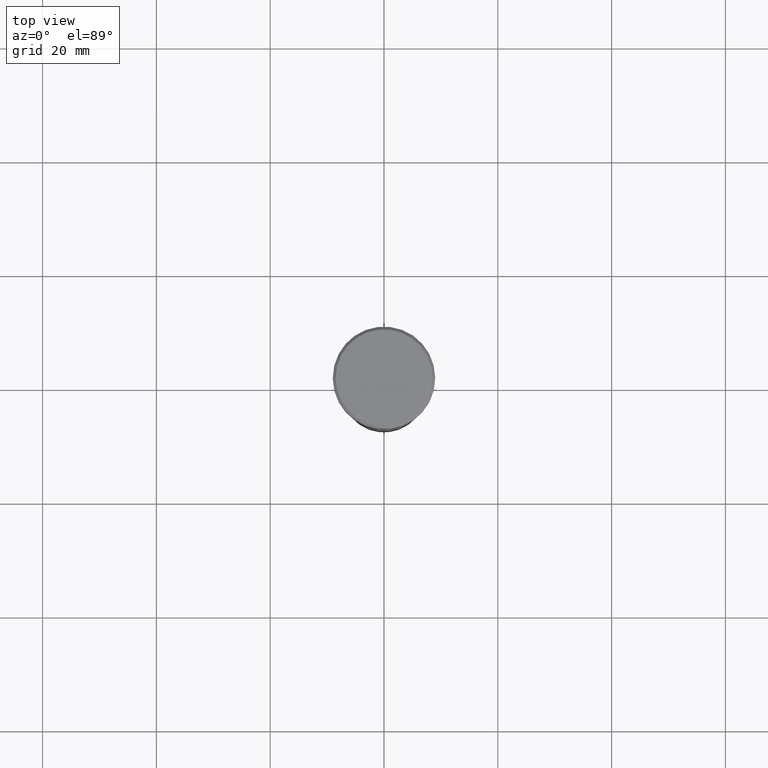
[diagram: clean part render]
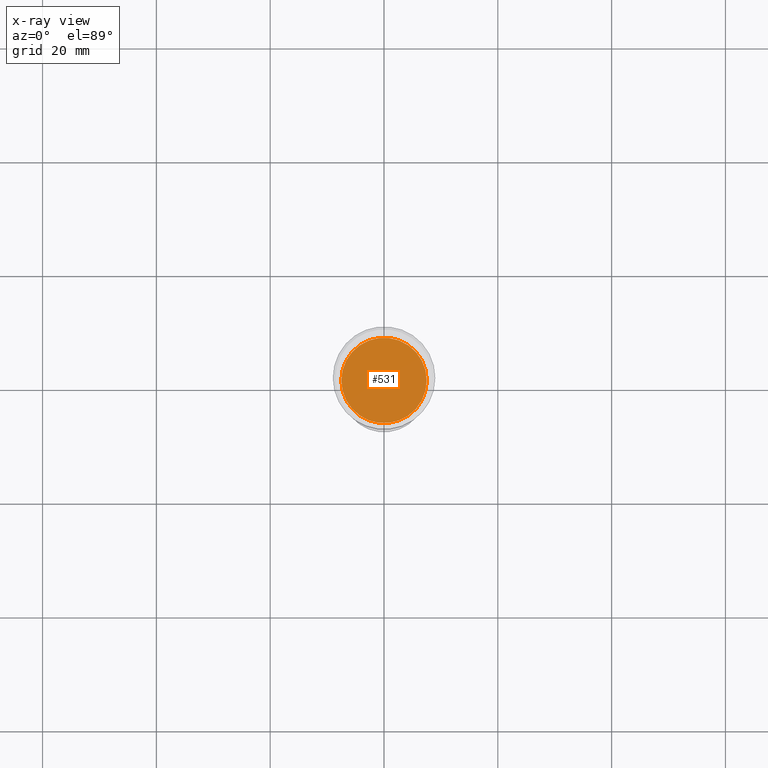
[diagram: x-ray — body ghosted, one internal face saturated and labeled with its STEP entity id]
A machine part, top view, then the same camera in x-ray: the body is ghosted and one INTERNAL B-rep face — a face not visible from any outside direction — is saturated and labeled: STEP entity #531.
In plain terms, the highlighted planar face has unit normal (0, 0, -1).
Its self-contained STEP definition (entity closure, byte-faithful):
#76 = EDGE_LOOP ( 'NONE', ( #1084, #389 ) ) ;
#79 = VERTEX_POINT ( 'NONE', #976 ) ;
#85 = AXIS2_PLACEMENT_3D ( 'NONE', #614, #707, #1063 ) ;
#121 = CARTESIAN_POINT ( 'NONE',  ( 7.500000000000000000, 0.000000000000000000, -28.00000000000000000 ) ) ;
#178 = PLANE ( 'NONE',  #676 ) ;
#283 = EDGE_CURVE ( 'NONE', #647, #79, #292, .T. ) ;
#292 = CIRCLE ( 'NONE', #921, 7.500000000000000000 ) ;
#389 = ORIENTED_EDGE ( 'NONE', *, *, #933, .T. ) ;
#527 = DIRECTION ( 'NONE',  ( -1.000000000000000000, 0.000000000000000000, -0.000000000000000000 ) ) ;
#531 = ADVANCED_FACE ( 'NONE', ( #710 ), #178, .F. ) ;
#614 = CARTESIAN_POINT ( 'NONE',  ( 0.000000000000000000, 0.000000000000000000, -28.00000000000000000 ) ) ;
#647 = VERTEX_POINT ( 'NONE', #121 ) ;
#669 = DIRECTION ( 'NONE',  ( -0.000000000000000000, -0.000000000000000000, 1.000000000000000000 ) ) ;
#676 = AXIS2_PLACEMENT_3D ( 'NONE', #799, #966, #527 ) ;
#707 = DIRECTION ( 'NONE',  ( -0.000000000000000000, -0.000000000000000000, 1.000000000000000000 ) ) ;
#710 = FACE_OUTER_BOUND ( 'NONE', #76, .T. ) ;
#787 = CARTESIAN_POINT ( 'NONE',  ( 0.000000000000000000, 0.000000000000000000, -28.00000000000000000 ) ) ;
#799 = CARTESIAN_POINT ( 'NONE',  ( 0.000000000000000000, 0.000000000000000000, -28.00000000000000000 ) ) ;
#921 = AXIS2_PLACEMENT_3D ( 'NONE', #787, #669, #1023 ) ;
#933 = EDGE_CURVE ( 'NONE', #79, #647, #1087, .T. ) ;
#966 = DIRECTION ( 'NONE',  ( 0.000000000000000000, 0.000000000000000000, -1.000000000000000000 ) ) ;
#976 = CARTESIAN_POINT ( 'NONE',  ( -7.500000000000000888, 9.184850993605149917E-16, -28.00000000000000000 ) ) ;
#1023 = DIRECTION ( 'NONE',  ( 1.000000000000000000, 0.000000000000000000, 0.000000000000000000 ) ) ;
#1063 = DIRECTION ( 'NONE',  ( 1.000000000000000000, 0.000000000000000000, 0.000000000000000000 ) ) ;
#1084 = ORIENTED_EDGE ( 'NONE', *, *, #283, .T. ) ;
#1087 = CIRCLE ( 'NONE', #85, 7.500000000000000000 ) ;